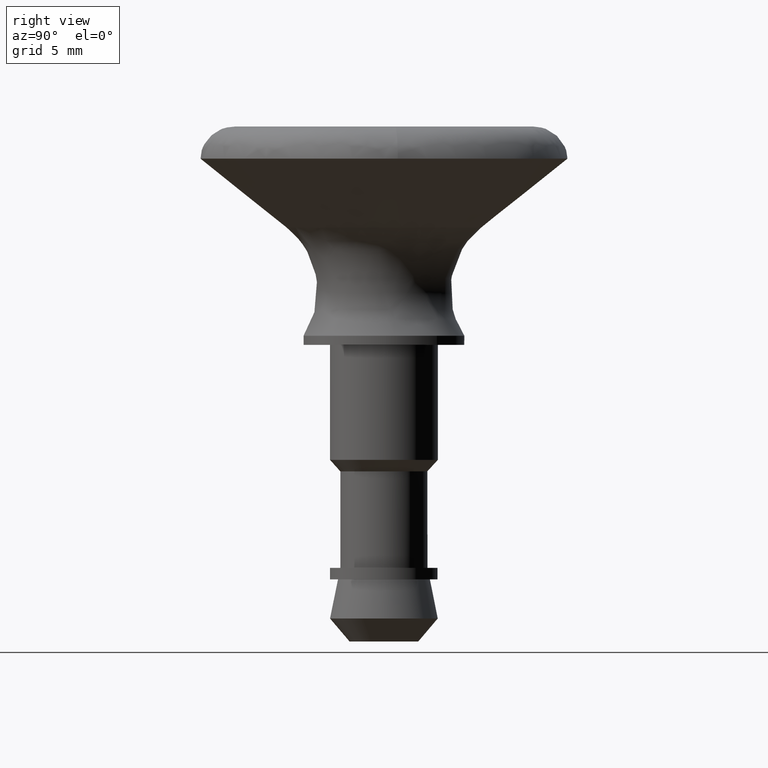
[diagram: clean part render]
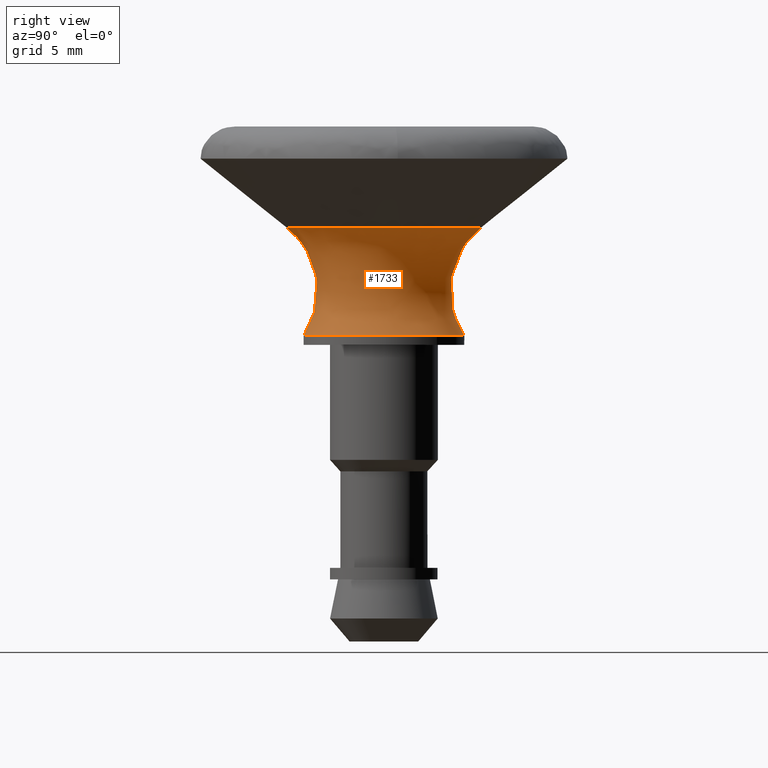
[diagram: same view with one face highlighted and labeled with its STEP entity id]
A machine part, right view. The second image highlights one B-rep face of the part: STEP entity #1733.
In plain terms, the highlighted face is a freeform B-spline surface patch.
Its self-contained STEP definition (entity closure, byte-faithful):
#87=CARTESIAN_POINT('',(-2.349221299765516,3.508054115693598,5.099000037088982));
#88=VERTEX_POINT('',#87);
#94=CARTESIAN_POINT('',(-3.774731284770753,1.891213399266595,5.099000037077739));
#95=VERTEX_POINT('',#94);
#96=CARTESIAN_POINT('',(-3.774731284770754,1.891213399266596,5.099000037077739));
#97=CARTESIAN_POINT('',(-3.275414742860376,2.887814720145955,5.099000037084553));
#98=CARTESIAN_POINT('',(-2.349221299765516,3.508054115693598,5.099000037088982));
#106=(BOUNDED_CURVE()B_SPLINE_CURVE(2,(#96,#97,#98),.UNSPECIFIED.,.F.,.U.)B_SPLINE_CURVE_WITH_KNOTS((3,3),(0.076154610386100,0.154565963839045),.UNSPECIFIED.)CURVE()GEOMETRIC_REPRESENTATION_ITEM()RATIONAL_B_SPLINE_CURVE((0.875915174756538,0.840017871536641,0.861746398574875))REPRESENTATION_ITEM(''));
#107=EDGE_CURVE('',#95,#88,#106,.T.);
#124=CARTESIAN_POINT('',(-1.203351339466768,-4.046879037923459,5.099000037076628));
#125=VERTEX_POINT('',#124);
#139=CARTESIAN_POINT('',(4.222000046655825,0.0,5.099000037093671));
#140=VERTEX_POINT('',#139);
#141=CARTESIAN_POINT('',(4.222000046655825,0.0,5.099000037093671));
#142=CARTESIAN_POINT('',(4.222000046655825,-4.222000046655825,5.099000037093671));
#143=CARTESIAN_POINT('',(0.0,-4.222000046655825,5.099000037093671));
#144=CARTESIAN_POINT('',(-0.614418152634286,-4.222000046655825,5.099000037093671));
#145=CARTESIAN_POINT('',(-1.203351339466767,-4.046879037923460,5.099000037076627));
#153=(BOUNDED_CURVE()B_SPLINE_CURVE(2,(#141,#142,#143,#144,#145),.UNSPECIFIED.,.F.,.U.)B_SPLINE_CURVE_WITH_KNOTS((3,2,3),(0.500000000000000,0.750000000000000,0.798526662066620),.UNSPECIFIED.)CURVE()GEOMETRIC_REPRESENTATION_ITEM()RATIONAL_B_SPLINE_CURVE((1.0,0.707106781186548,1.0,0.943147478996139,0.908365862587397))REPRESENTATION_ITEM(''));
#154=EDGE_CURVE('',#140,#125,#153,.T.);
#156=CARTESIAN_POINT('',(0.404660771623894,4.202562795947735,5.099000037094942));
#157=VERTEX_POINT('',#156);
#158=CARTESIAN_POINT('',(0.404660771623894,4.202562795947736,5.099000037094943));
#159=CARTESIAN_POINT('',(4.222000046655825,3.834994830484964,5.099000037093670));
#160=CARTESIAN_POINT('',(4.222000046655825,0.0,5.099000037093671));
#168=(BOUNDED_CURVE()B_SPLINE_CURVE(2,(#158,#159,#160),.UNSPECIFIED.,.F.,.U.)B_SPLINE_CURVE_WITH_KNOTS((3,3),(0.266651095235499,0.500000000000000),.UNSPECIFIED.)CURVE()GEOMETRIC_REPRESENTATION_ITEM()RATIONAL_B_SPLINE_CURVE((0.963582689690847,0.726614752707726,1.0))REPRESENTATION_ITEM(''));
#169=EDGE_CURVE('',#157,#140,#168,.T.);
#271=CARTESIAN_POINT('',(-2.349221299765516,3.508054115693598,5.099000037088982));
#272=CARTESIAN_POINT('',(-1.283097405136621,4.222000046655825,5.099000037093671));
#273=CARTESIAN_POINT('',(0.0,4.222000046655825,5.099000037093671));
#274=CARTESIAN_POINT('',(0.202797204869175,4.222000046655826,5.099000037093671));
#275=CARTESIAN_POINT('',(0.404660771623894,4.202562795947735,5.099000037094942));
#283=(BOUNDED_CURVE()B_SPLINE_CURVE(2,(#271,#272,#273,#274,#275),.UNSPECIFIED.,.F.,.U.)B_SPLINE_CURVE_WITH_KNOTS((3,2,3),(0.154565963839045,0.250000000000000,0.266651095235499),.UNSPECIFIED.)CURVE()GEOMETRIC_REPRESENTATION_ITEM()RATIONAL_B_SPLINE_CURVE((0.861746398574875,0.888192071857834,1.0,0.980492028478821,0.963582689690847))REPRESENTATION_ITEM(''));
#284=EDGE_CURVE('',#88,#157,#283,.T.);
#316=CARTESIAN_POINT('',(2.633808179230800,2.305006393704056,0.399408205773353));
#317=VERTEX_POINT('',#316);
#318=CARTESIAN_POINT('',(3.500000000000000,0.0,0.399408205773434));
#319=VERTEX_POINT('',#318);
#320=CARTESIAN_POINT('',(2.633808179230800,2.305006393704055,0.399408205773353));
#321=CARTESIAN_POINT('',(3.500000000000000,1.315254740976700,0.399408205773434));
#322=CARTESIAN_POINT('',(3.500000000000000,0.0,0.399408205773434));
#330=(BOUNDED_CURVE()B_SPLINE_CURVE(2,(#320,#321,#322),.UNSPECIFIED.,.F.,.U.)B_SPLINE_CURVE_WITH_KNOTS((3,3),(0.385034317494842,0.500000000000000),.UNSPECIFIED.)CURVE()GEOMETRIC_REPRESENTATION_ITEM()RATIONAL_B_SPLINE_CURVE((0.854497092802855,0.865309324791916,1.0))REPRESENTATION_ITEM(''));
#331=EDGE_CURVE('',#317,#319,#330,.T.);
#333=CARTESIAN_POINT('',(-0.997567418658353,-3.354826261547822,0.399408205786196));
#334=VERTEX_POINT('',#333);
#335=CARTESIAN_POINT('',(3.500000000000000,0.0,0.399408205773434));
#336=CARTESIAN_POINT('',(3.500000000000000,-3.500000000000000,0.399408205773434));
#337=CARTESIAN_POINT('',(0.0,-3.500000000000000,0.399408205773434));
#338=CARTESIAN_POINT('',(-0.509347112844009,-3.500000000000000,0.399408205773434));
#339=CARTESIAN_POINT('',(-0.997567418658353,-3.354826261547822,0.399408205786196));
#347=(BOUNDED_CURVE()B_SPLINE_CURVE(2,(#335,#336,#337,#338,#339),.UNSPECIFIED.,.F.,.U.)B_SPLINE_CURVE_WITH_KNOTS((3,2,3),(0.500000000000000,0.750000000000000,0.798526662066012),.UNSPECIFIED.)CURVE()GEOMETRIC_REPRESENTATION_ITEM()RATIONAL_B_SPLINE_CURVE((1.0,0.707106781186547,1.0,0.943147478996852,0.908365862588269))REPRESENTATION_ITEM(''));
#348=EDGE_CURVE('',#319,#334,#347,.T.);
#365=CARTESIAN_POINT('',(-3.129218226106874,1.567798868854677,0.399408205819637));
#366=VERTEX_POINT('',#365);
#380=CARTESIAN_POINT('',(0.577666620530455,3.451999605377283,0.399408205773434));
#381=VERTEX_POINT('',#380);
#382=CARTESIAN_POINT('',(-3.129218226106874,1.567798868854677,0.399408205819637));
#383=CARTESIAN_POINT('',(-2.161148079232103,3.500000000000000,0.399408205773434));
#384=CARTESIAN_POINT('',(0.0,3.500000000000000,0.399408205773434));
#385=CARTESIAN_POINT('',(0.290827572883764,3.500000000000000,0.399408205773434));
#386=CARTESIAN_POINT('',(0.577666620530455,3.451999605377283,0.399408205773434));
#394=(BOUNDED_CURVE()B_SPLINE_CURVE(2,(#382,#383,#384,#385,#386),.UNSPECIFIED.,.F.,.U.)B_SPLINE_CURVE_WITH_KNOTS((3,2,3),(0.076154610387177,0.250000000000000,0.278400518243153),.UNSPECIFIED.)CURVE()GEOMETRIC_REPRESENTATION_ITEM()RATIONAL_B_SPLINE_CURVE((0.875915174755552,0.796327457041686,1.0,0.966726723183171,0.941013272808309))REPRESENTATION_ITEM(''));
#395=EDGE_CURVE('',#366,#381,#394,.T.);
#479=CARTESIAN_POINT('',(0.577666620530455,3.451999605377283,0.399408205773434));
#480=CARTESIAN_POINT('',(1.810564721027807,3.245683220495253,0.399408205773434));
#481=CARTESIAN_POINT('',(2.633808179230800,2.305006393704055,0.399408205773353));
#489=(BOUNDED_CURVE()B_SPLINE_CURVE(2,(#479,#480,#481),.UNSPECIFIED.,.F.,.U.)B_SPLINE_CURVE_WITH_KNOTS((3,3),(0.278400518243152,0.385034317494842),.UNSPECIFIED.)CURVE()GEOMETRIC_REPRESENTATION_ITEM()RATIONAL_B_SPLINE_CURVE((0.941013272808309,0.844468453384022,0.854497092802855))REPRESENTATION_ITEM(''));
#490=EDGE_CURVE('',#381,#317,#489,.T.);
#1668=CARTESIAN_POINT('',(-3.252297918037272,1.629464175573377,0.209681310064327));
#1669=CARTESIAN_POINT('',(-1.886268779048613,4.355963960785129,0.209681310064327));
#1670=CARTESIAN_POINT('',(1.036804148605933,3.486779661031094,0.209681310064327));
#1671=CARTESIAN_POINT('',(4.523583809637027,2.449975512425162,0.209681310064327));
#1672=CARTESIAN_POINT('',(3.486779661031095,-1.036804148605933,0.209681310064327));
#1673=CARTESIAN_POINT('',(2.449975512425163,-4.523583809637025,0.209681310064327));
#1674=CARTESIAN_POINT('',(-1.036804148605932,-3.486779661031095,0.209681310064327));
#1675=CARTESIAN_POINT('',(-1.219130344800037,0.610807887920960,3.132653132059556));
#1676=CARTESIAN_POINT('',(-0.707071604428807,1.632841756592009,3.132653132059557));
#1677=CARTESIAN_POINT('',(0.388648097755716,1.307026292646627,3.132653132059557));
#1678=CARTESIAN_POINT('',(1.695674390402342,0.918378194890911,3.132653132059557));
#1679=CARTESIAN_POINT('',(1.307026292646627,-0.388648097755716,3.132653132059557));
#1680=CARTESIAN_POINT('',(0.918378194890911,-1.695674390402342,3.132653132059557));
#1681=CARTESIAN_POINT('',(-0.388648097755715,-1.307026292646627,3.132653132059557));
#1682=CARTESIAN_POINT('',(-3.942823725031941,1.975430963722278,5.238476846639376));
#1683=CARTESIAN_POINT('',(-2.286760155818749,5.280819433765936,5.238476846639376));
#1684=CARTESIAN_POINT('',(1.256937740132381,4.227090481233916,5.238476846639377));
#1685=CARTESIAN_POINT('',(5.484028221366297,2.970152741101535,5.238476846639378));
#1686=CARTESIAN_POINT('',(4.227090481233916,-1.256937740132381,5.238476846639377));
#1687=CARTESIAN_POINT('',(2.970152741101537,-5.484028221366295,5.238476846639378));
#1688=CARTESIAN_POINT('',(-1.256937740132380,-4.227090481233917,5.238476846639377));
#1696=(BOUNDED_SURFACE()B_SPLINE_SURFACE(2,2,((#1668,#1675,#1682),(#1669,#1676,#1683),(#1670,#1677,#1684),(#1671,#1678,#1685),(#1672,#1679,#1686),(#1673,#1680,#1687),(#1674,#1681,#1688)),.UNSPECIFIED.,.F.,.F.,.U.)B_SPLINE_SURFACE_WITH_KNOTS((3,2,2,3),(3,3),(0.0,6.429934257332707,13.736677731574421,21.043421205816141),(0.0,6.032069869930956),.UNSPECIFIED.)GEOMETRIC_REPRESENTATION_ITEM()RATIONAL_B_SPLINE_SURFACE(((0.856771428549764,0.588924350825188,0.857951573129863),(0.677874673898016,0.465954966474512,0.678808400322275),(0.913265140545053,0.627756787988559,0.914523101384891),(0.645775973900693,0.443891081722596,0.646665486541009),(0.913265140545053,0.627756787988559,0.914523101384891),(0.645775973900693,0.443891081722596,0.646665486541009),(0.913265140545053,0.627756787988559,0.914523101384891)))REPRESENTATION_ITEM('')SURFACE());
#1697=ORIENTED_EDGE('',*,*,#169,.T.);
#1698=ORIENTED_EDGE('',*,*,#154,.T.);
#1699=CARTESIAN_POINT('',(-0.997567418658353,-3.354826261547821,0.399408205786196));
#1700=CARTESIAN_POINT('',(-0.480722674287707,-1.616673742631726,3.083253056832763));
#1701=CARTESIAN_POINT('',(-1.203351339466767,-4.046879037923459,5.099000037076628));
#1709=(BOUNDED_CURVE()B_SPLINE_CURVE(2,(#1699,#1700,#1701),.UNSPECIFIED.,.F.,.U.)B_SPLINE_CURVE_WITH_KNOTS((3,3),(-1.716611771288575,-0.279914654442440),.UNSPECIFIED.)CURVE()GEOMETRIC_REPRESENTATION_ITEM()RATIONAL_B_SPLINE_CURVE((0.888513679607701,0.652565382771475,0.889657372700025))REPRESENTATION_ITEM(''));
#1710=EDGE_CURVE('',#334,#125,#1709,.T.);
#1711=ORIENTED_EDGE('',*,*,#1710,.F.);
#1712=ORIENTED_EDGE('',*,*,#348,.F.);
#1713=ORIENTED_EDGE('',*,*,#331,.F.);
#1714=ORIENTED_EDGE('',*,*,#490,.F.);
#1715=ORIENTED_EDGE('',*,*,#395,.F.);
#1716=CARTESIAN_POINT('',(-3.129218226106874,1.567798868854677,0.399408205819637));
#1717=CARTESIAN_POINT('',(-1.507954375852035,0.755514315039402,3.083253056882130));
#1718=CARTESIAN_POINT('',(-3.774731284770753,1.891213399266595,5.099000037077739));
#1726=(BOUNDED_CURVE()B_SPLINE_CURVE(2,(#1716,#1717,#1718),.UNSPECIFIED.,.F.,.U.)B_SPLINE_CURVE_WITH_KNOTS((3,3),(-1.716611771264201,-0.279914654441361),.UNSPECIFIED.)CURVE()GEOMETRIC_REPRESENTATION_ITEM()RATIONAL_B_SPLINE_CURVE((0.833551069410476,0.612198309560851,0.834624014744963))REPRESENTATION_ITEM(''));
#1727=EDGE_CURVE('',#366,#95,#1726,.T.);
#1728=ORIENTED_EDGE('',*,*,#1727,.T.);
#1729=ORIENTED_EDGE('',*,*,#107,.T.);
#1730=ORIENTED_EDGE('',*,*,#284,.T.);
#1731=EDGE_LOOP('',(#1697,#1698,#1711,#1712,#1713,#1714,#1715,#1728,#1729,#1730));
#1732=FACE_OUTER_BOUND('',#1731,.T.);
#1733=ADVANCED_FACE('',(#1732),#1696,.F.);